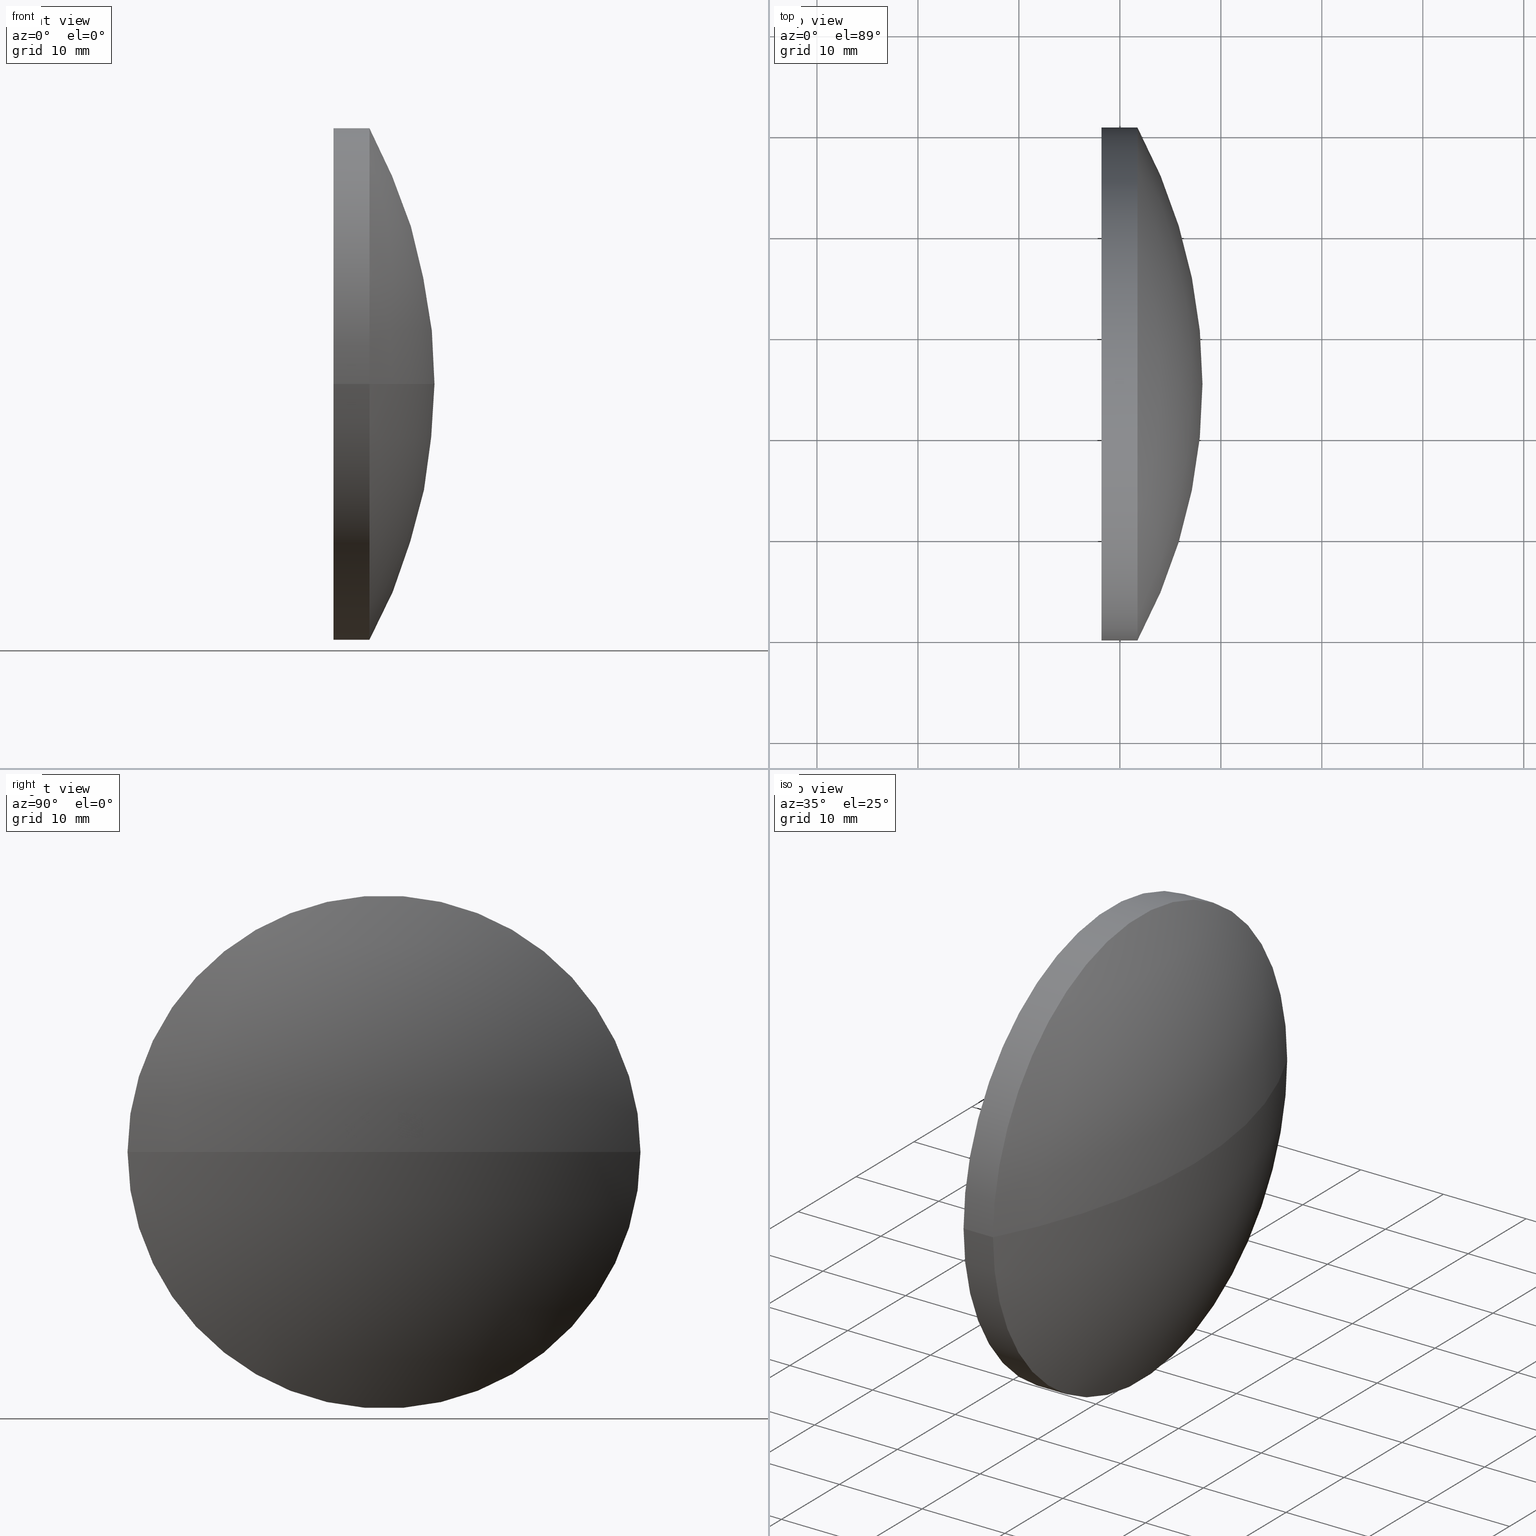
[diagram: canonical four-view strip — front | top / right | iso, engineering-drawing reading convention]
A machine part, canonical four-view strip (front | top / right | iso — engineering-drawing reading convention). The complete STEP part file that produces these views, byte-faithful:
ISO-10303-21;
HEADER;
FILE_DESCRIPTION (( 'STEP AP214' ),
    '1' );
FILE_NAME ('140490��ģ.STEP',
    '2022-03-25T06:01:16',
    ( '' ),
    ( '' ),
    'SwSTEP 2.0',
    'SolidWorks 2020',
    '' );
FILE_SCHEMA (( 'AUTOMOTIVE_DESIGN' ));
ENDSEC;

DATA;
#1 = COLOUR_RGB ( '',1.000000000000000000, 1.000000000000000000, 1.000000000000000000 ) ;
#2 = DIRECTION ( 'NONE',  ( -1.000000000000000000, -2.863878963965248009E-14, 0.000000000000000000 ) ) ;
#3 = DIRECTION ( 'NONE',  ( -1.000000000000000000, -2.863878963965248009E-14, -0.000000000000000000 ) ) ;
#4 = PRODUCT_DEFINITION ( 'δ֪', '', #44, #86 ) ;
#5 = ORIENTED_EDGE ( 'NONE', *, *, #80, .T. ) ;
#6 = DIRECTION ( 'NONE',  ( -0.000000000000000000, 0.000000000000000000, -1.000000000000000000 ) ) ;
#7 = STYLED_ITEM ( 'NONE', ( #118 ), #33 ) ;
#8 = SURFACE_SIDE_STYLE ('',( #20 ) ) ;
#9 =( GEOMETRIC_REPRESENTATION_CONTEXT ( 3 ) GLOBAL_UNCERTAINTY_ASSIGNED_CONTEXT ( ( #126 ) ) GLOBAL_UNIT_ASSIGNED_CONTEXT ( ( #19, #129, #103 ) ) REPRESENTATION_CONTEXT ( 'NONE', 'WORKASPACE' ) );
#10 = DIRECTION ( 'NONE',  ( -3.507240206365479357E-30, 1.224646799147353207E-16, -1.000000000000000000 ) ) ;
#11 = CARTESIAN_POINT ( 'NONE',  ( 0.000000000000000000, 0.000000000000000000, 0.000000000000000000 ) ) ;
#12 = CIRCLE ( 'NONE', #50, 53.30381200000022801 ) ;
#13 = DIRECTION ( 'NONE',  ( -1.000000000000000000, -2.863878963965248009E-14, -0.000000000000000000 ) ) ;
#14 = FACE_OUTER_BOUND ( 'NONE', #18, .T. ) ;
#15 = EDGE_CURVE ( 'NONE', #67, #63, #87, .T. ) ;
#16 = ORIENTED_EDGE ( 'NONE', *, *, #159, .F. ) ;
#17 = VECTOR ( 'NONE', #64, 1000.000000000000000 ) ;
#18 = EDGE_LOOP ( 'NONE', ( #154, #46, #38, #16 ) ) ;
#19 =( LENGTH_UNIT ( ) NAMED_UNIT ( * ) SI_UNIT ( .MILLI., .METRE. ) );
#20 = SURFACE_STYLE_FILL_AREA ( #45 ) ;
#21 =( NAMED_UNIT ( * ) SI_UNIT ( $, .STERADIAN. ) SOLID_ANGLE_UNIT ( ) );
#22 = CIRCLE ( 'NONE', #34, 25.40000018338206544 ) ;
#23 = AXIS2_PLACEMENT_3D ( 'NONE', #77, #133, #107 ) ;
#24 = APPLICATION_CONTEXT ( 'automotive_design' ) ;
#25 = PRESENTATION_STYLE_ASSIGNMENT (( #145 ) ) ;
#26 = CARTESIAN_POINT ( 'NONE',  ( 2398.181304954599000, -199.4492977715789834, 3.110602892291852711E-15 ) ) ;
#27 = DIRECTION ( 'NONE',  ( 3.496765406644805851E-14, -1.000000000000000000, 0.000000000000000000 ) ) ;
#28 = AXIS2_PLACEMENT_3D ( 'NONE', #36, #3, #42 ) ;
#29 = CARTESIAN_POINT ( 'NONE',  ( 2401.740445960312172, -250.2492981383400661, -3.110602892292074775E-15 ) ) ;
#30 = EDGE_LOOP ( 'NONE', ( #102, #5 ) ) ;
#31 = EDGE_CURVE ( 'NONE', #48, #67, #22, .T. ) ;
#32 = CARTESIAN_POINT ( 'NONE',  ( 2354.877492954598893, -224.8492979549595532, 0.000000000000000000 ) ) ;
#33 = ADVANCED_BREP_SHAPE_REPRESENTATION ( '140490��ģ', ( #65, #140 ), #82 ) ;
#34 = AXIS2_PLACEMENT_3D ( 'NONE', #128, #13, #88 ) ;
#35 = UNCERTAINTY_MEASURE_WITH_UNIT (LENGTH_MEASURE( 1.000000000000000082E-05 ), #108, 'distance_accuracy_value', 'NONE');
#36 = CARTESIAN_POINT ( 'NONE',  ( 2398.181304954599909, -224.8492979549583026, 0.000000000000000000 ) ) ;
#37 = ORIENTED_EDGE ( 'NONE', *, *, #124, .T. ) ;
#38 = ORIENTED_EDGE ( 'NONE', *, *, #51, .F. ) ;
#39 = FILL_AREA_STYLE ('',( #130 ) ) ;
#40 = DIRECTION ( 'NONE',  ( -0.000000000000000000, 0.000000000000000000, -1.000000000000000000 ) ) ;
#41 = ADVANCED_FACE ( 'NONE', ( #49 ), #113, .T. ) ;
#42 = DIRECTION ( 'NONE',  ( 3.496765406644805851E-14, -1.000000000000000000, 0.000000000000000000 ) ) ;
#43 = FACE_OUTER_BOUND ( 'NONE', #141, .T. ) ;
#44 = PRODUCT_DEFINITION_FORMATION_WITH_SPECIFIED_SOURCE ( '�κ�', '', #144, .NOT_KNOWN. ) ;
#45 = FILL_AREA_STYLE ('',( #134 ) ) ;
#46 = ORIENTED_EDGE ( 'NONE', *, *, #15, .T. ) ;
#47 = CARTESIAN_POINT ( 'NONE',  ( 2354.877492954598893, -224.8492979549595532, 0.000000000000000000 ) ) ;
#48 = VERTEX_POINT ( 'NONE', #29 ) ;
#49 = FACE_OUTER_BOUND ( 'NONE', #30, .T. ) ;
#50 = AXIS2_PLACEMENT_3D ( 'NONE', #163, #152, #92 ) ;
#51 = EDGE_CURVE ( 'NONE', #73, #63, #139, .T. ) ;
#52 = ORIENTED_EDGE ( 'NONE', *, *, #31, .F. ) ;
#53 = CARTESIAN_POINT ( 'NONE',  ( 2398.181304954592633, -1.740006688312529041E-25, 0.000000000000000000 ) ) ;
#54 = UNCERTAINTY_MEASURE_WITH_UNIT (LENGTH_MEASURE( 1.000000000000000082E-05 ), #162, 'distance_accuracy_value', 'NONE');
#55 = CARTESIAN_POINT ( 'NONE',  ( 2354.877492954598893, -224.8492979549595532, 0.000000000000000000 ) ) ;
#56 = MECHANICAL_DESIGN_GEOMETRIC_PRESENTATION_REPRESENTATION (  '', ( #7 ), #115 ) ;
#57 = DIRECTION ( 'NONE',  ( -2.499385277642401143E-14, 1.000000000000000000, 0.000000000000000000 ) ) ;
#58 = DIRECTION ( 'NONE',  ( -1.000000000000000000, -2.863878963965248009E-14, -0.000000000000000000 ) ) ;
#59 = SHAPE_DEFINITION_REPRESENTATION ( #149, #33 ) ;
#60 = ADVANCED_FACE ( 'NONE', ( #14 ), #76, .T. ) ;
#61 = ORIENTED_EDGE ( 'NONE', *, *, #110, .F. ) ;
#62 = AXIS2_PLACEMENT_3D ( 'NONE', #55, #40, #57 ) ;
#63 = VERTEX_POINT ( 'NONE', #26 ) ;
#64 = DIRECTION ( 'NONE',  ( -1.000000000000000000, -2.863878963965248009E-14, -0.000000000000000000 ) ) ;
#65 = MANIFOLD_SOLID_BREP ( '��ת1', #66 ) ;
#66 = CLOSED_SHELL ( 'NONE', ( #60, #166, #41, #165, #93 ) ) ;
#67 = VERTEX_POINT ( 'NONE', #91 ) ;
#68 = ORIENTED_EDGE ( 'NONE', *, *, #124, .F. ) ;
#69 = SPHERICAL_SURFACE ( 'NONE', #160, 53.30381200000017117 ) ;
#70 = SURFACE_STYLE_USAGE ( .BOTH. , #8 ) ;
#71 = DIRECTION ( 'NONE',  ( 3.496765406644610845E-14, -1.000000000000000000, 0.000000000000000000 ) ) ;
#72 = DIRECTION ( 'NONE',  ( 0.000000000000000000, 0.000000000000000000, 1.000000000000000000 ) ) ;
#73 = VERTEX_POINT ( 'NONE', #112 ) ;
#74 = DIRECTION ( 'NONE',  ( 2.863878963965248009E-14, -1.000000000000000000, 0.000000000000000000 ) ) ;
#75 = MECHANICAL_DESIGN_GEOMETRIC_PRESENTATION_REPRESENTATION (  '', ( #90 ), #9 ) ;
#76 = CYLINDRICAL_SURFACE ( 'NONE', #153, 25.40000018338073318 ) ;
#77 = CARTESIAN_POINT ( 'NONE',  ( 2401.740445960311263, -224.8492979549582174, 0.000000000000000000 ) ) ;
#78 = CARTESIAN_POINT ( 'NONE',  ( 2354.877492954598893, -224.8492979549595532, 0.000000000000000000 ) ) ;
#79 = LINE ( 'NONE', #117, #106 ) ;
#80 = EDGE_CURVE ( 'NONE', #63, #73, #131, .T. ) ;
#81 =( NAMED_UNIT ( * ) SI_UNIT ( $, .STERADIAN. ) SOLID_ANGLE_UNIT ( ) );
#82 =( GEOMETRIC_REPRESENTATION_CONTEXT ( 3 ) GLOBAL_UNCERTAINTY_ASSIGNED_CONTEXT ( ( #54 ) ) GLOBAL_UNIT_ASSIGNED_CONTEXT ( ( #162, #150, #21 ) ) REPRESENTATION_CONTEXT ( 'NONE', 'WORKASPACE' ) );
#83 = PRESENTATION_LAYER_ASSIGNMENT (  '', '', ( #90 ) ) ;
#84 = ORIENTED_EDGE ( 'NONE', *, *, #97, .F. ) ;
#85 = SURFACE_STYLE_FILL_AREA ( #39 ) ;
#86 = PRODUCT_DEFINITION_CONTEXT ( 'detailed design', #24, 'design' ) ;
#87 = LINE ( 'NONE', #146, #17 ) ;
#88 = DIRECTION ( 'NONE',  ( 3.496765406644427829E-14, -1.000000000000000000, 0.000000000000000000 ) ) ;
#89 = ORIENTED_EDGE ( 'NONE', *, *, #97, .T. ) ;
#90 = STYLED_ITEM ( 'NONE', ( #25 ), #65 ) ;
#91 = CARTESIAN_POINT ( 'NONE',  ( 2401.740445960310353, -199.4492977715763971, 0.000000000000000000 ) ) ;
#92 = DIRECTION ( 'NONE',  ( 1.000000000000000000, 0.000000000000000000, 0.000000000000000000 ) ) ;
#93 = ADVANCED_FACE ( 'NONE', ( #105 ), #135, .T. ) ;
#94 = FACE_OUTER_BOUND ( 'NONE', #155, .T. ) ;
#95 =( NAMED_UNIT ( * ) PLANE_ANGLE_UNIT ( ) SI_UNIT ( $, .RADIAN. ) );
#96 = CARTESIAN_POINT ( 'NONE',  ( 2354.877492954598893, -224.8492979549595532, 0.000000000000000000 ) ) ;
#97 = EDGE_CURVE ( 'NONE', #157, #48, #114, .T. ) ;
#98 = APPLICATION_PROTOCOL_DEFINITION ( 'draft international standard', 'automotive_design', 1998, #24 ) ;
#99 = APPLICATION_CONTEXT ( 'automotive_design' ) ;
#100 = AXIS2_PLACEMENT_3D ( 'NONE', #78, #137, #71 ) ;
#101 = DIRECTION ( 'NONE',  ( -1.000000000000000000, -2.863878963965248009E-14, -0.000000000000000000 ) ) ;
#102 = ORIENTED_EDGE ( 'NONE', *, *, #51, .T. ) ;
#103 =( NAMED_UNIT ( * ) SI_UNIT ( $, .STERADIAN. ) SOLID_ANGLE_UNIT ( ) );
#104 = DIRECTION ( 'NONE',  ( -1.000000000000000000, -2.863878963965248009E-14, -0.000000000000000000 ) ) ;
#105 = FACE_OUTER_BOUND ( 'NONE', #132, .T. ) ;
#106 = VECTOR ( 'NONE', #58, 1000.000000000000000 ) ;
#107 = DIRECTION ( 'NONE',  ( 3.496765406644427829E-14, -1.000000000000000000, 0.000000000000000000 ) ) ;
#108 =( LENGTH_UNIT ( ) NAMED_UNIT ( * ) SI_UNIT ( .MILLI., .METRE. ) );
#109 = SPHERICAL_SURFACE ( 'NONE', #62, 53.30381200000017117 ) ;
#110 = EDGE_CURVE ( 'NONE', #67, #48, #136, .T. ) ;
#111 = CARTESIAN_POINT ( 'NONE',  ( 2398.181304954599909, -224.8492979549583026, 0.000000000000000000 ) ) ;
#112 = CARTESIAN_POINT ( 'NONE',  ( 2398.181304954600819, -250.2492981383376218, 0.000000000000000000 ) ) ;
#113 = PLANE ( 'NONE',  #164 ) ;
#114 = CIRCLE ( 'NONE', #147, 53.30381200000017117 ) ;
#115 =( GEOMETRIC_REPRESENTATION_CONTEXT ( 3 ) GLOBAL_UNCERTAINTY_ASSIGNED_CONTEXT ( ( #35 ) ) GLOBAL_UNIT_ASSIGNED_CONTEXT ( ( #108, #95, #81 ) ) REPRESENTATION_CONTEXT ( 'NONE', 'WORKASPACE' ) );
#116 = ORIENTED_EDGE ( 'NONE', *, *, #80, .F. ) ;
#117 = CARTESIAN_POINT ( 'NONE',  ( 2354.877492954599802, -250.2492981383402935, 0.000000000000000000 ) ) ;
#118 = PRESENTATION_STYLE_ASSIGNMENT (( #70 ) ) ;
#119 = APPLICATION_PROTOCOL_DEFINITION ( 'draft international standard', 'automotive_design', 1998, #99 ) ;
#120 = DIRECTION ( 'NONE',  ( 0.000000000000000000, 1.000000000000000000, 1.224646799147353207E-16 ) ) ;
#121 = AXIS2_PLACEMENT_3D ( 'NONE', #111, #104, #27 ) ;
#122 = DIRECTION ( 'NONE',  ( -2.499385277642401143E-14, 1.000000000000000000, 0.000000000000000000 ) ) ;
#123 = PRODUCT_CONTEXT ( 'NONE', #99, 'mechanical' ) ;
#124 = EDGE_CURVE ( 'NONE', #157, #67, #12, .T. ) ;
#125 = COLOUR_RGB ( '',1.000000000000000000, 1.000000000000000000, 1.000000000000000000 ) ;
#126 = UNCERTAINTY_MEASURE_WITH_UNIT (LENGTH_MEASURE( 1.000000000000000082E-05 ), #19, 'distance_accuracy_value', 'NONE');
#127 = PRODUCT_RELATED_PRODUCT_CATEGORY ( 'part', '', ( #144 ) ) ;
#128 = CARTESIAN_POINT ( 'NONE',  ( 2401.740445960311263, -224.8492979549582174, 0.000000000000000000 ) ) ;
#129 =( NAMED_UNIT ( * ) PLANE_ANGLE_UNIT ( ) SI_UNIT ( $, .RADIAN. ) );
#130 = FILL_AREA_STYLE_COLOUR ( '', #1 ) ;
#131 = CIRCLE ( 'NONE', #28, 25.40000018337931920 ) ;
#132 = EDGE_LOOP ( 'NONE', ( #156, #148, #158, #116 ) ) ;
#133 = DIRECTION ( 'NONE',  ( -1.000000000000000000, -2.863878963965248009E-14, -0.000000000000000000 ) ) ;
#134 = FILL_AREA_STYLE_COLOUR ( '', #125 ) ;
#135 = CYLINDRICAL_SURFACE ( 'NONE', #100, 25.40000018338073318 ) ;
#136 = CIRCLE ( 'NONE', #23, 25.40000018338206544 ) ;
#137 = DIRECTION ( 'NONE',  ( -1.000000000000000000, -2.863878963965248009E-14, -0.000000000000000000 ) ) ;
#138 = DIRECTION ( 'NONE',  ( 1.000000000000000000, 0.000000000000000000, 0.000000000000000000 ) ) ;
#139 = CIRCLE ( 'NONE', #121, 25.40000018337931920 ) ;
#140 = AXIS2_PLACEMENT_3D ( 'NONE', #11, #72, #138 ) ;
#141 = EDGE_LOOP ( 'NONE', ( #84, #37, #52 ) ) ;
#142 = SURFACE_SIDE_STYLE ('',( #85 ) ) ;
#143 = DIRECTION ( 'NONE',  ( 3.496765406644610845E-14, -1.000000000000000000, 0.000000000000000000 ) ) ;
#144 = PRODUCT ( '140490��ģ', '140490��ģ', '', ( #123 ) ) ;
#145 = SURFACE_STYLE_USAGE ( .BOTH. , #142 ) ;
#146 = CARTESIAN_POINT ( 'NONE',  ( 2354.877492954597983, -199.4492977715788413, 3.110602892291936330E-15 ) ) ;
#147 = AXIS2_PLACEMENT_3D ( 'NONE', #96, #10, #120 ) ;
#148 = ORIENTED_EDGE ( 'NONE', *, *, #110, .T. ) ;
#149 = PRODUCT_DEFINITION_SHAPE ( 'NONE', 'NONE',  #4 ) ;
#150 =( NAMED_UNIT ( * ) PLANE_ANGLE_UNIT ( ) SI_UNIT ( $, .RADIAN. ) );
#151 = PRESENTATION_LAYER_ASSIGNMENT (  '', '', ( #7 ) ) ;
#152 = DIRECTION ( 'NONE',  ( -0.000000000000000000, 0.000000000000000000, 1.000000000000000000 ) ) ;
#153 = AXIS2_PLACEMENT_3D ( 'NONE', #47, #101, #143 ) ;
#154 = ORIENTED_EDGE ( 'NONE', *, *, #31, .T. ) ;
#155 = EDGE_LOOP ( 'NONE', ( #68, #89, #61 ) ) ;
#156 = ORIENTED_EDGE ( 'NONE', *, *, #15, .F. ) ;
#157 = VERTEX_POINT ( 'NONE', #161 ) ;
#158 = ORIENTED_EDGE ( 'NONE', *, *, #159, .T. ) ;
#159 = EDGE_CURVE ( 'NONE', #48, #73, #79, .T. ) ;
#160 = AXIS2_PLACEMENT_3D ( 'NONE', #32, #6, #122 ) ;
#161 = CARTESIAN_POINT ( 'NONE',  ( 2408.181304954599455, -224.8492979549580468, 0.000000000000000000 ) ) ;
#162 =( LENGTH_UNIT ( ) NAMED_UNIT ( * ) SI_UNIT ( .MILLI., .METRE. ) );
#163 = CARTESIAN_POINT ( 'NONE',  ( 2354.877492954598893, -224.8492979549595532, 0.000000000000000000 ) ) ;
#164 = AXIS2_PLACEMENT_3D ( 'NONE', #53, #2, #74 ) ;
#165 = ADVANCED_FACE ( 'NONE', ( #43 ), #69, .T. ) ;
#166 = ADVANCED_FACE ( 'NONE', ( #94 ), #109, .T. ) ;
ENDSEC;
END-ISO-10303-21;
